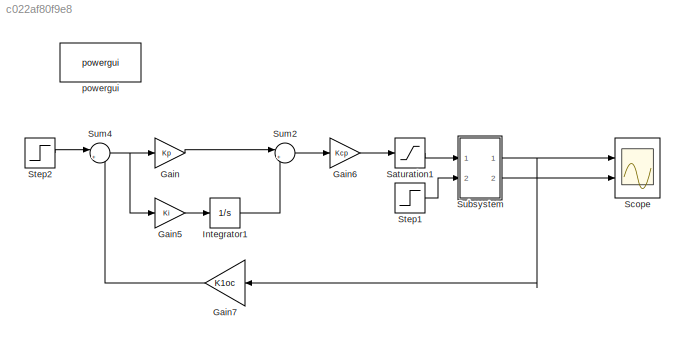
MODEL slx_c022af80f9e8
KIND model
CONFIG AbsTol = auto
CONFIG EnableMultiTasking = off
CONFIG FixedStep = auto
CONFIG MaxStep = auto
CONFIG MinStep = auto
CONFIG RelTol = 1e-3
CONFIG SampleTimeConstraint = Unconstrained
CONFIG Solver = VariableStepAuto
CONFIG SolverName = VariableStepAuto
CONFIG StartTime = 0.0
CONFIG StopTime = 1
BLOCK [Gain] Gain
  Gain = Kp
  OutDataTypeStr = Inherit: Inherit via internal rule
  ParamDataTypeStr = Inherit: Inherit via internal rule
  SaturateOnIntegerOverflow = off
BLOCK [Gain] Gain5
  Gain = Ki
  OutDataTypeStr = Inherit: Inherit via internal rule
  ParamDataTypeStr = Inherit: Inherit via internal rule
  SaturateOnIntegerOverflow = off
BLOCK [Gain] Gain6
  Gain = Kcp
  OutDataTypeStr = Inherit: Inherit via internal rule
  ParamDataTypeStr = Inherit: Inherit via internal rule
  SaturateOnIntegerOverflow = off
BLOCK [Gain] Gain7
  Gain = K1oc
  OutDataTypeStr = Inherit: Inherit via internal rule
  ParamDataTypeStr = Inherit: Inherit via internal rule
  SaturateOnIntegerOverflow = off
BLOCK [Integrator] Integrator1
  Ports = [1, 1]
BLOCK [Saturate] Saturation1
  InputPortMap = u0
  LowerLimit = -110
  Ports = [1, 1]
  UpperLimit = 110
BLOCK [Scope] Scope
  Floating = off
  NumInputPorts = 2
  Ports = [2]
  ScopeSpecificationString = Simulink.scopes.TimeScopeBlockCfg('CurrentConfiguration', extmgr.ConfigurationSet(extmgr.Configuration('Core','General UI',true),extmgr.Configuration('Core','Source UI',true),extmgr.Configuration('Sources','WiredSimulink',true,'DataLoggingVariableName','ScopeData1'),extmgr.Configuration('Visuals','Time Domain',true,'SerializedDisplays',{struct('MinYLimReal','-0.13039','MaxYLimReal','1.17355','YLab...<+2049ch>
BLOCK [Step] Step1
  SampleTime = 0
BLOCK [Step] Step2
  After = 0.1
  SampleTime = 0
  Time = 0
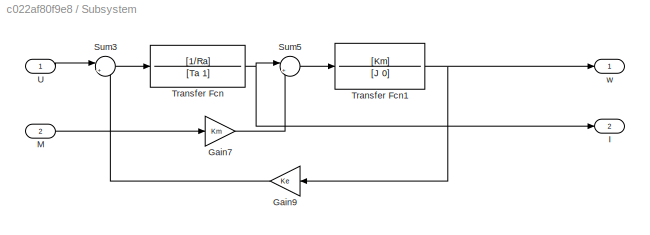
BLOCK [SubSystem] Subsystem
  Ports = [2, 2]
  RequestExecContextInheritance = off
BLOCK [Gain] Subsystem/Gain7
  Gain = Km
  OutDataTypeStr = Inherit: Inherit via internal rule
  ParamDataTypeStr = Inherit: Inherit via internal rule
  SaturateOnIntegerOverflow = off
BLOCK [Gain] Subsystem/Gain9
  Gain = Ke
  OutDataTypeStr = Inherit: Inherit via internal rule
  ParamDataTypeStr = Inherit: Inherit via internal rule
  SaturateOnIntegerOverflow = off
BLOCK [Outport] Subsystem/I
  IconDisplay = Port number
  Port = 2
BLOCK [Inport] Subsystem/M
  IconDisplay = Port number
  Port = 2
BLOCK [Sum] Subsystem/Sum3
  IconShape = round
  InputSameDT = off
  Inputs = |+-
  OutDataTypeStr = Inherit: Inherit via internal rule
  Ports = [2, 1]
  SaturateOnIntegerOverflow = off
BLOCK [Sum] Subsystem/Sum5
  IconShape = round
  InputSameDT = off
  Inputs = |+-
  OutDataTypeStr = Inherit: Inherit via internal rule
  Ports = [2, 1]
  SaturateOnIntegerOverflow = off
BLOCK [TransferFcn] Subsystem/Transfer Fcn
  Denominator = [Ta 1]
  Numerator = [1/Ra]
BLOCK [TransferFcn] Subsystem/Transfer Fcn1
  Denominator = [J 0]
  Numerator = [Km]
BLOCK [Inport] Subsystem/U
  IconDisplay = Port number
BLOCK [Outport] Subsystem/w
  IconDisplay = Port number
BLOCK [Sum] Sum2
  IconShape = round
  InputSameDT = off
  Inputs = |++
  OutDataTypeStr = Inherit: Inherit via internal rule
  Ports = [2, 1]
  SaturateOnIntegerOverflow = off
BLOCK [Sum] Sum4
  IconShape = round
  InputSameDT = off
  Inputs = |+-
  OutDataTypeStr = Inherit: Inherit via internal rule
  Ports = [2, 1]
  SaturateOnIntegerOverflow = off
BLOCK [Reference] powergui  REF=powerlib/powergui
  Ports = []
  Priority = 1
  SourceBlock = powerlib/powergui
  SourceProductBaseCode = PS
  SourceProductName = Simscape Electrical
  SourceType = PSB option menu block
LINE Gain5:1 -> Integrator1:1
LINE Gain6:1 -> Saturation1:1
LINE Gain7:1 -> Sum4:2
LINE Gain:1 -> Sum2:1
LINE Integrator1:1 -> Sum2:2
LINE Saturation1:1 -> Subsystem:1
LINE Step1:1 -> Subsystem:2
LINE Step2:1 -> Sum4:1
LINE Subsystem/Gain7:1 -> Subsystem/Sum5:2
LINE Subsystem/Gain9:1 -> Subsystem/Sum3:2
LINE Subsystem/M:1 -> Subsystem/Gain7:1
LINE Subsystem/Sum3:1 -> Subsystem/Transfer Fcn:1
LINE Subsystem/Sum5:1 -> Subsystem/Transfer Fcn1:1
NET Subsystem/Transfer Fcn1:1 -> Subsystem/Gain9:1, Subsystem/w:1
NET Subsystem/Transfer Fcn:1 -> Subsystem/I:1, Subsystem/Sum5:1
LINE Subsystem/U:1 -> Subsystem/Sum3:1
NET Subsystem:1 -> Gain7:1, Scope:1
LINE Subsystem:2 -> Scope:2
LINE Sum2:1 -> Gain6:1
NET Sum4:1 -> Gain5:1, Gain:1
note: NET lines group one-source signal fan-out (src -> all destinations, sorted); 1:1 wires keep LINE
